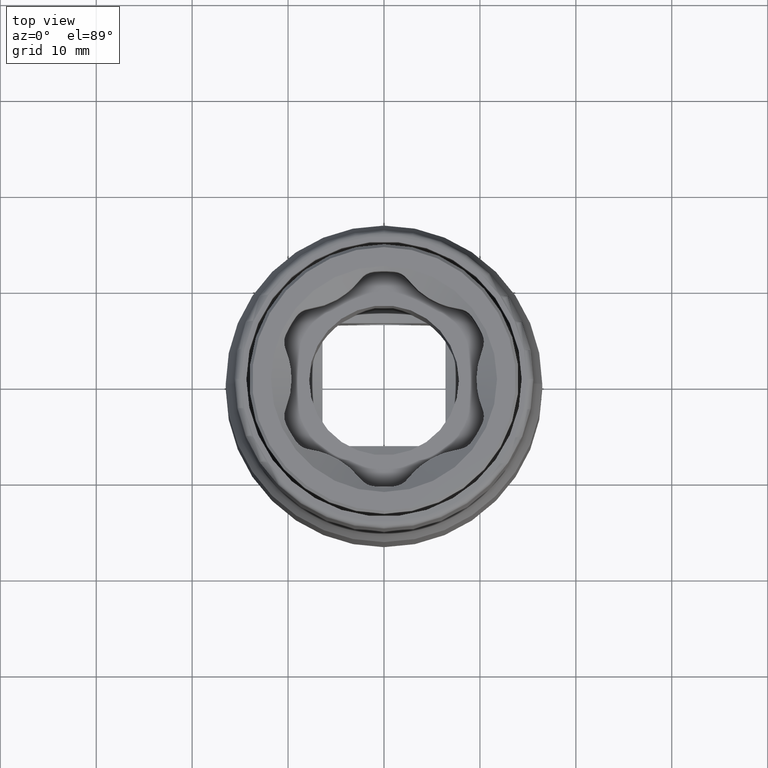
[diagram: clean part render]
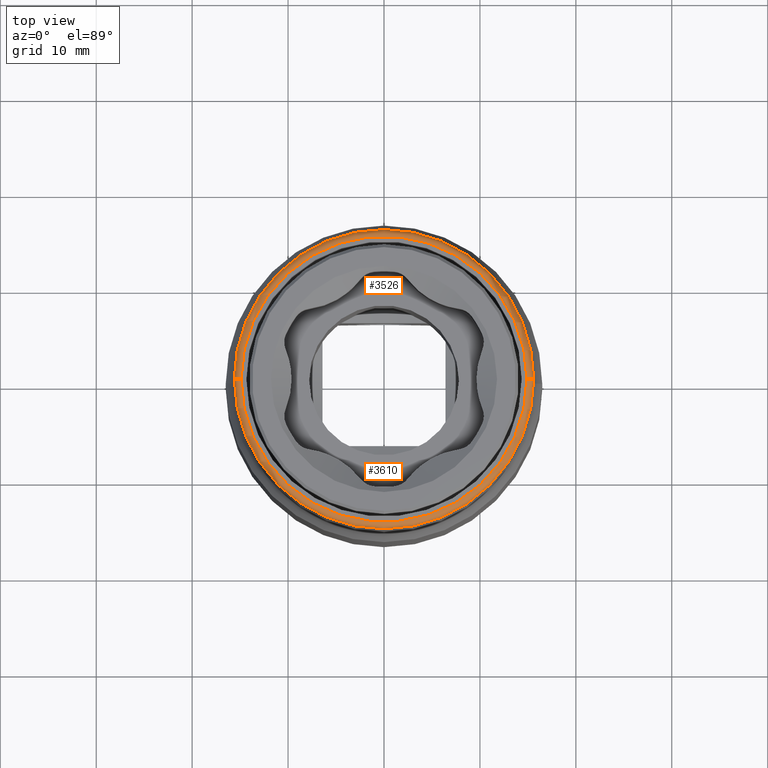
[diagram: same view with one multi-face feature highlighted, each face labeled with its STEP entity id]
A machine part, top view. The highlighted faces form ONE feature: a constant-radius fillet chain: 2 tangent blend faces with common blend radius 0.7 mm. The faces share edges in the B-rep.
Their STEP definitions:
[1] entity #3610 (Torus):
#3096=CARTESIAN_POINT('',(-1.49E1,2.645089733481E-12,5.9E1));
#3097=DIRECTION('',(-1.774544053368E-13,-1.E0,0.E0));
#3098=DIRECTION('',(0.E0,0.E0,1.E0));
#3099=AXIS2_PLACEMENT_3D('',#3096,#3097,#3098);
#3120=CARTESIAN_POINT('',(0.E0,0.E0,5.97E1));
#3121=DIRECTION('',(0.E0,0.E0,1.E0));
#3122=DIRECTION('',(1.E0,0.E0,0.E0));
#3123=AXIS2_PLACEMENT_3D('',#3120,#3121,#3122);
#3182=CARTESIAN_POINT('',(1.49E1,-2.643221721928E-12,5.9E1));
#3183=DIRECTION('',(1.774648136776E-13,1.E0,0.E0));
#3184=DIRECTION('',(0.E0,0.E0,1.E0));
#3185=AXIS2_PLACEMENT_3D('',#3182,#3183,#3184);
#3190=CARTESIAN_POINT('',(0.E0,0.E0,5.9E1));
#3191=DIRECTION('',(0.E0,0.E0,1.E0));
#3192=DIRECTION('',(1.E0,0.E0,0.E0));
#3193=AXIS2_PLACEMENT_3D('',#3190,#3191,#3192);
#3237=CARTESIAN_POINT('',(1.49E1,0.E0,5.97E1));
#3238=CARTESIAN_POINT('',(-1.49E1,0.E0,5.97E1));
#3239=VERTEX_POINT('',#3237);
#3240=VERTEX_POINT('',#3238);
#3241=CARTESIAN_POINT('',(1.56E1,0.E0,5.9E1));
#3242=CARTESIAN_POINT('',(-1.56E1,0.E0,5.9E1));
#3243=VERTEX_POINT('',#3241);
#3244=VERTEX_POINT('',#3242);
#3598=CARTESIAN_POINT('',(0.E0,0.E0,5.9E1));
#3599=DIRECTION('',(0.E0,0.E0,1.E0));
#3600=DIRECTION('',(9.999719244438E-1,-7.493351999143E-3,0.E0));
#3601=AXIS2_PLACEMENT_3D('',#3598,#3599,#3600);
#3602=TOROIDAL_SURFACE('',#3601,1.49E1,7.E-1);
#3603=ORIENTED_EDGE('',*,*,#3532,.T.);
#3604=ORIENTED_EDGE('',*,*,#3522,.T.);
#3606=ORIENTED_EDGE('',*,*,#3605,.F.);
#3607=ORIENTED_EDGE('',*,*,#3519,.F.);
#3608=EDGE_LOOP('',(#3603,#3604,#3606,#3607));
#3609=FACE_OUTER_BOUND('',#3608,.F.);
#3610=ADVANCED_FACE('',(#3609),#3602,.T.);
#3100=CIRCLE('',#3099,7.E-1);
#3124=CIRCLE('',#3123,1.49E1);
#3186=CIRCLE('',#3185,7.E-1);
#3194=CIRCLE('',#3193,1.56E1);
#3519=EDGE_CURVE('',#3239,#3243,#3186,.T.);
#3522=EDGE_CURVE('',#3240,#3244,#3100,.T.);
#3532=EDGE_CURVE('',#3239,#3240,#3124,.T.);
#3605=EDGE_CURVE('',#3243,#3244,#3194,.T.);
[2] entity #3526 (Torus):
#3073=CARTESIAN_POINT('',(0.E0,0.E0,5.9E1));
#3074=DIRECTION('',(0.E0,0.E0,1.E0));
#3075=DIRECTION('',(-1.E0,0.E0,0.E0));
#3076=AXIS2_PLACEMENT_3D('',#3073,#3074,#3075);
#3096=CARTESIAN_POINT('',(-1.49E1,2.645089733481E-12,5.9E1));
#3097=DIRECTION('',(-1.774544053368E-13,-1.E0,0.E0));
#3098=DIRECTION('',(0.E0,0.E0,1.E0));
#3099=AXIS2_PLACEMENT_3D('',#3096,#3097,#3098);
#3128=CARTESIAN_POINT('',(0.E0,0.E0,5.97E1));
#3129=DIRECTION('',(0.E0,0.E0,1.E0));
#3130=DIRECTION('',(-1.E0,0.E0,0.E0));
#3131=AXIS2_PLACEMENT_3D('',#3128,#3129,#3130);
#3182=CARTESIAN_POINT('',(1.49E1,-2.643221721928E-12,5.9E1));
#3183=DIRECTION('',(1.774648136776E-13,1.E0,0.E0));
#3184=DIRECTION('',(0.E0,0.E0,1.E0));
#3185=AXIS2_PLACEMENT_3D('',#3182,#3183,#3184);
#3237=CARTESIAN_POINT('',(1.49E1,0.E0,5.97E1));
#3238=CARTESIAN_POINT('',(-1.49E1,0.E0,5.97E1));
#3239=VERTEX_POINT('',#3237);
#3240=VERTEX_POINT('',#3238);
#3241=CARTESIAN_POINT('',(1.56E1,0.E0,5.9E1));
#3242=CARTESIAN_POINT('',(-1.56E1,0.E0,5.9E1));
#3243=VERTEX_POINT('',#3241);
#3244=VERTEX_POINT('',#3242);
#3512=CARTESIAN_POINT('',(0.E0,0.E0,5.9E1));
#3513=DIRECTION('',(0.E0,0.E0,1.E0));
#3514=DIRECTION('',(-9.999719244438E-1,7.493351999142E-3,0.E0));
#3515=AXIS2_PLACEMENT_3D('',#3512,#3513,#3514);
#3516=TOROIDAL_SURFACE('',#3515,1.49E1,7.E-1);
#3518=ORIENTED_EDGE('',*,*,#3517,.T.);
#3520=ORIENTED_EDGE('',*,*,#3519,.T.);
#3521=ORIENTED_EDGE('',*,*,#3502,.F.);
#3523=ORIENTED_EDGE('',*,*,#3522,.F.);
#3524=EDGE_LOOP('',(#3518,#3520,#3521,#3523));
#3525=FACE_OUTER_BOUND('',#3524,.F.);
#3526=ADVANCED_FACE('',(#3525),#3516,.T.);
#3077=CIRCLE('',#3076,1.56E1);
#3100=CIRCLE('',#3099,7.E-1);
#3132=CIRCLE('',#3131,1.49E1);
#3186=CIRCLE('',#3185,7.E-1);
#3502=EDGE_CURVE('',#3244,#3243,#3077,.T.);
#3517=EDGE_CURVE('',#3240,#3239,#3132,.T.);
#3519=EDGE_CURVE('',#3239,#3243,#3186,.T.);
#3522=EDGE_CURVE('',#3240,#3244,#3100,.T.);